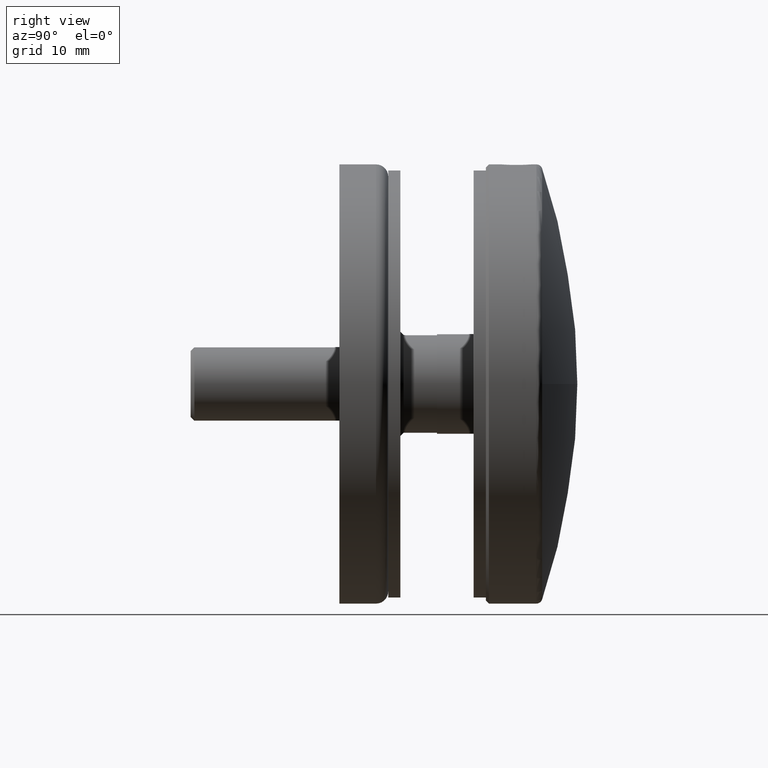
[diagram: clean part render]
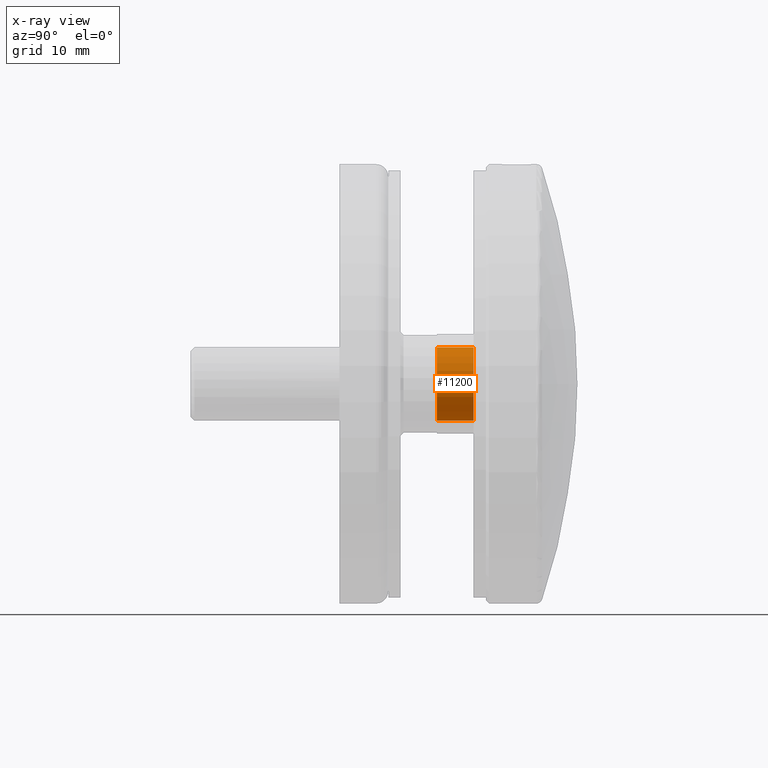
[diagram: x-ray — body ghosted, one internal face saturated and labeled with its STEP entity id]
A machine part, right view, then the same camera in x-ray: the body is ghosted and one INTERNAL B-rep face — a face not visible from any outside direction — is saturated and labeled: STEP entity #11200.
In plain terms, the highlighted cylindrical surface (partial cylindrical patch) has radius 6 mm, axis along (-0, -1, -0).
Its self-contained STEP definition (entity closure, byte-faithful):
#44 = VECTOR ( 'NONE', #8051, 1000.000000000000000 ) ;
#969 = CARTESIAN_POINT ( 'NONE',  ( 7.347880794884120722E-16, 6.000000000000000000, 6.000000000000000888 ) ) ;
#1891 = CIRCLE ( 'NONE', #9655, 6.000000000000000888 ) ;
#1971 = CARTESIAN_POINT ( 'NONE',  ( 7.347880794884120722E-16, 6.000000000000000000, 6.000000000000000888 ) ) ;
#2397 = ORIENTED_EDGE ( 'NONE', *, *, #4692, .T. ) ;
#2756 = DIRECTION ( 'NONE',  ( 0.000000000000000000, 0.000000000000000000, 1.000000000000000000 ) ) ;
#2844 = DIRECTION ( 'NONE',  ( 0.000000000000000000, 0.000000000000000000, -1.000000000000000000 ) ) ;
#2996 = LINE ( 'NONE', #969, #44 ) ;
#3354 = ORIENTED_EDGE ( 'NONE', *, *, #12859, .F. ) ;
#4575 = AXIS2_PLACEMENT_3D ( 'NONE', #12518, #11540, #8059 ) ;
#4692 = EDGE_CURVE ( 'NONE', #8705, #14250, #1891, .T. ) ;
#4913 = CARTESIAN_POINT ( 'NONE',  ( 0.000000000000000000, 6.000000000000000000, 0.000000000000000000 ) ) ;
#5091 = VERTEX_POINT ( 'NONE', #12407 ) ;
#5660 = CARTESIAN_POINT ( 'NONE',  ( 0.000000000000000000, 6.000000000000000000, -6.000000000000000888 ) ) ;
#6248 = CYLINDRICAL_SURFACE ( 'NONE', #11212, 6.000000000000000888 ) ;
#6435 = FACE_OUTER_BOUND ( 'NONE', #12010, .T. ) ;
#6643 = VERTEX_POINT ( 'NONE', #8024 ) ;
#6986 = VECTOR ( 'NONE', #10154, 1000.000000000000000 ) ;
#7736 = CIRCLE ( 'NONE', #4575, 6.000000000000000888 ) ;
#8024 = CARTESIAN_POINT ( 'NONE',  ( 0.000000000000000000, 0.000000000000000000, -6.000000000000000888 ) ) ;
#8051 = DIRECTION ( 'NONE',  ( -0.000000000000000000, -1.000000000000000000, -0.000000000000000000 ) ) ;
#8059 = DIRECTION ( 'NONE',  ( 0.000000000000000000, 0.000000000000000000, 1.000000000000000000 ) ) ;
#8106 = CARTESIAN_POINT ( 'NONE',  ( 0.000000000000000000, 6.000000000000000000, 0.000000000000000000 ) ) ;
#8580 = LINE ( 'NONE', #5660, #6986 ) ;
#8705 = VERTEX_POINT ( 'NONE', #1971 ) ;
#8750 = CARTESIAN_POINT ( 'NONE',  ( 0.000000000000000000, 6.000000000000000000, -6.000000000000000888 ) ) ;
#9655 = AXIS2_PLACEMENT_3D ( 'NONE', #8106, #11454, #2756 ) ;
#10154 = DIRECTION ( 'NONE',  ( -0.000000000000000000, -1.000000000000000000, -0.000000000000000000 ) ) ;
#10223 = EDGE_CURVE ( 'NONE', #8705, #5091, #2996, .T. ) ;
#11200 = ADVANCED_FACE ( 'NONE', ( #6435 ), #6248, .F. ) ;
#11212 = AXIS2_PLACEMENT_3D ( 'NONE', #4913, #12706, #2844 ) ;
#11454 = DIRECTION ( 'NONE',  ( 0.000000000000000000, 1.000000000000000000, 0.000000000000000000 ) ) ;
#11540 = DIRECTION ( 'NONE',  ( 0.000000000000000000, 1.000000000000000000, 0.000000000000000000 ) ) ;
#12010 = EDGE_LOOP ( 'NONE', ( #12863, #2397, #14114, #3354 ) ) ;
#12407 = CARTESIAN_POINT ( 'NONE',  ( 7.347880794884120722E-16, 0.000000000000000000, 6.000000000000000888 ) ) ;
#12518 = CARTESIAN_POINT ( 'NONE',  ( 0.000000000000000000, 0.000000000000000000, 0.000000000000000000 ) ) ;
#12706 = DIRECTION ( 'NONE',  ( -0.000000000000000000, -1.000000000000000000, -0.000000000000000000 ) ) ;
#12859 = EDGE_CURVE ( 'NONE', #5091, #6643, #7736, .T. ) ;
#12863 = ORIENTED_EDGE ( 'NONE', *, *, #10223, .F. ) ;
#13932 = EDGE_CURVE ( 'NONE', #14250, #6643, #8580, .T. ) ;
#14114 = ORIENTED_EDGE ( 'NONE', *, *, #13932, .T. ) ;
#14250 = VERTEX_POINT ( 'NONE', #8750 ) ;